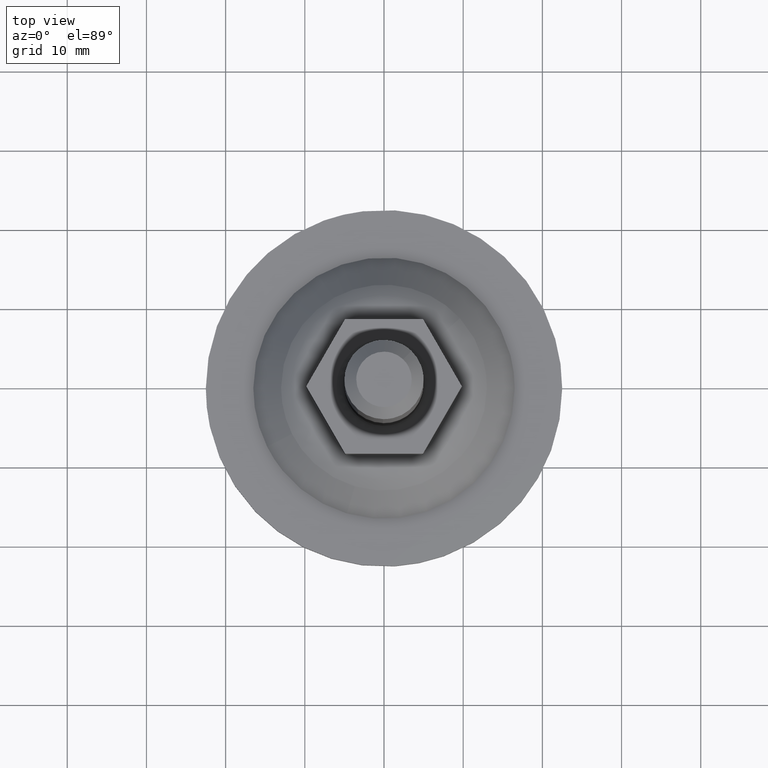
[diagram: clean part render]
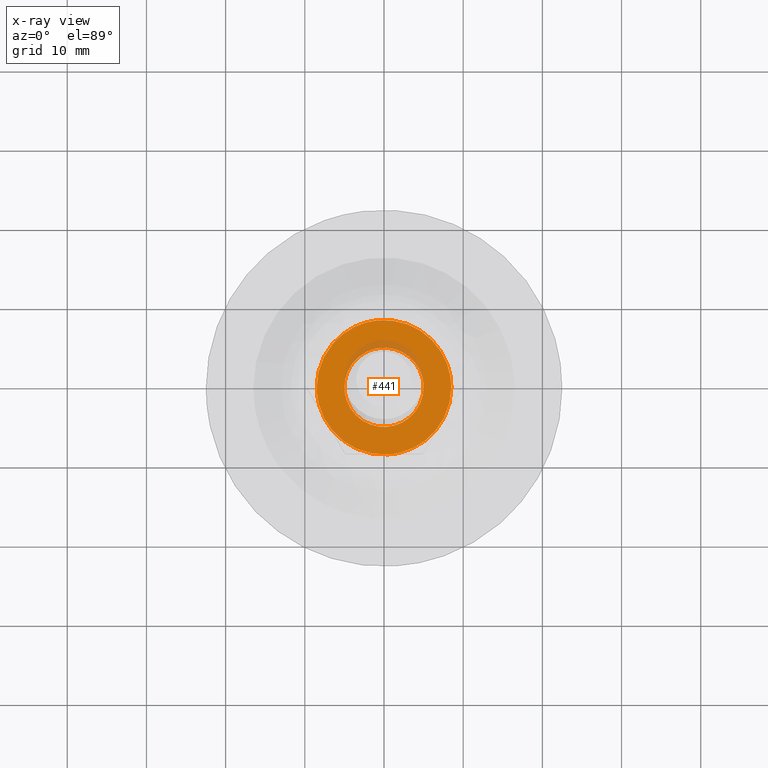
[diagram: x-ray — body ghosted, one internal face saturated and labeled with its STEP entity id]
A machine part, top view, then the same camera in x-ray: the body is ghosted and one INTERNAL B-rep face — a face not visible from any outside direction — is saturated and labeled: STEP entity #441.
In plain terms, the highlighted face is a freeform B-spline surface patch.
Its self-contained STEP definition (entity closure, byte-faithful):
#66=CARTESIAN_POINT('',(-0.590163485273047,4.965048545642874,9.000000000000849));
#67=VERTEX_POINT('',#66);
#68=CARTESIAN_POINT('',(5.0,0.0,9.0));
#69=VERTEX_POINT('',#68);
#70=CARTESIAN_POINT('',(-0.590163485273047,4.965048545642876,9.000000000000849));
#71=CARTESIAN_POINT('',(-0.296116713616737,5.0,9.0));
#72=CARTESIAN_POINT('',(0.0,5.0,9.0));
#73=CARTESIAN_POINT('',(5.000000000000001,5.000000000000001,9.000000000000002));
#74=CARTESIAN_POINT('',(5.0,0.0,9.0));
#82=(BOUNDED_CURVE()B_SPLINE_CURVE(2,(#70,#71,#72,#73,#74),.UNSPECIFIED.,.F.,.U.)B_SPLINE_CURVE_WITH_KNOTS((3,2,3),(0.229562735204758,0.250000000000000,0.500000000000000),.UNSPECIFIED.)CURVE()GEOMETRIC_REPRESENTATION_ITEM()RATIONAL_B_SPLINE_CURVE((0.956027267109899,0.976056254921514,1.0,0.707106781186548,1.0))REPRESENTATION_ITEM(''));
#83=EDGE_CURVE('',#67,#69,#82,.T.);
#85=CARTESIAN_POINT('',(0.305242697723591,-4.990673992106318,9.0));
#86=VERTEX_POINT('',#85);
#87=CARTESIAN_POINT('',(5.0,0.0,9.0));
#88=CARTESIAN_POINT('',(5.000000000000001,-4.703530334435358,9.0));
#89=CARTESIAN_POINT('',(0.305242697723591,-4.990673992106318,9.0));
#97=(BOUNDED_CURVE()B_SPLINE_CURVE(2,(#87,#88,#89),.UNSPECIFIED.,.F.,.U.)B_SPLINE_CURVE_WITH_KNOTS((3,3),(0.500000000000000,0.739332962238559),.UNSPECIFIED.)CURVE()GEOMETRIC_REPRESENTATION_ITEM()RATIONAL_B_SPLINE_CURVE((1.0,0.719603993287160,0.976072041665894))REPRESENTATION_ITEM(''));
#98=EDGE_CURVE('',#69,#86,#97,.T.);
#169=CARTESIAN_POINT('',(-5.0,0.0,9.0));
#170=VERTEX_POINT('',#169);
#171=CARTESIAN_POINT('',(-5.0,0.0,9.0));
#172=CARTESIAN_POINT('',(-4.999999999999999,4.440879554532102,9.0));
#173=CARTESIAN_POINT('',(-0.590163485273047,4.965048545642876,9.000000000000849));
#181=(BOUNDED_CURVE()B_SPLINE_CURVE(2,(#171,#172,#173),.UNSPECIFIED.,.F.,.U.)B_SPLINE_CURVE_WITH_KNOTS((3,3),(0.0,0.229562735204758),.UNSPECIFIED.)CURVE()GEOMETRIC_REPRESENTATION_ITEM()RATIONAL_B_SPLINE_CURVE((1.0,0.731050526265033,0.956027267109899))REPRESENTATION_ITEM(''));
#182=EDGE_CURVE('',#170,#67,#181,.T.);
#216=CARTESIAN_POINT('',(0.305242697723591,-4.990673992106318,9.0));
#217=CARTESIAN_POINT('',(0.152763816542388,-5.000000000000001,9.000000000000002));
#218=CARTESIAN_POINT('',(0.0,-5.0,9.0));
#219=CARTESIAN_POINT('',(-5.000000000000001,-5.000000000000001,9.000000000000002));
#220=CARTESIAN_POINT('',(-5.0,0.0,9.0));
#228=(BOUNDED_CURVE()B_SPLINE_CURVE(2,(#216,#217,#218,#219,#220),.UNSPECIFIED.,.F.,.U.)B_SPLINE_CURVE_WITH_KNOTS((3,2,3),(0.739332962238559,0.750000000000000,1.0),.UNSPECIFIED.)CURVE()GEOMETRIC_REPRESENTATION_ITEM()RATIONAL_B_SPLINE_CURVE((0.976072041665895,0.987502787899388,1.0,0.707106781186548,1.0))REPRESENTATION_ITEM(''));
#229=EDGE_CURVE('',#86,#170,#228,.T.);
#260=CARTESIAN_POINT('',(-1.003283173780628,8.440581903704663,8.999999999999336));
#261=VERTEX_POINT('',#260);
#262=CARTESIAN_POINT('',(8.500000000000000,0.0,9.0));
#263=VERTEX_POINT('',#262);
#264=CARTESIAN_POINT('',(-1.003283173780628,8.440581903704663,8.999999999999336));
#265=CARTESIAN_POINT('',(-0.503401065300611,8.500000000000000,9.0));
#266=CARTESIAN_POINT('',(0.0,8.500000000000000,9.0));
#267=CARTESIAN_POINT('',(8.500000000000002,8.500000000000002,9.000000000000002));
#268=CARTESIAN_POINT('',(8.500000000000000,0.0,9.0));
#276=(BOUNDED_CURVE()B_SPLINE_CURVE(2,(#264,#265,#266,#267,#268),.UNSPECIFIED.,.F.,.U.)B_SPLINE_CURVE_WITH_KNOTS((3,2,3),(0.229562630109248,0.250000000000000,0.500000000000000),.UNSPECIFIED.)CURVE()GEOMETRIC_REPRESENTATION_ITEM()RATIONAL_B_SPLINE_CURVE((0.956027061117988,0.976056131794466,1.0,0.707106781186548,1.0))REPRESENTATION_ITEM(''));
#277=EDGE_CURVE('',#261,#263,#276,.T.);
#318=CARTESIAN_POINT('',(0.518899510675575,-8.484146586289574,9.000000000001279));
#319=VERTEX_POINT('',#318);
#325=CARTESIAN_POINT('',(8.500000000000000,0.0,9.0));
#326=CARTESIAN_POINT('',(8.500000000000000,-7.996013914799701,9.000000000000002));
#327=CARTESIAN_POINT('',(0.518899510675575,-8.484146586289574,9.000000000001279));
#335=(BOUNDED_CURVE()B_SPLINE_CURVE(2,(#325,#326,#327),.UNSPECIFIED.,.F.,.U.)B_SPLINE_CURVE_WITH_KNOTS((3,3),(0.500000000000000,0.739333228163105),.UNSPECIFIED.)CURVE()GEOMETRIC_REPRESENTATION_ITEM()RATIONAL_B_SPLINE_CURVE((1.0,0.719603681737175,0.976072611593480))REPRESENTATION_ITEM(''));
#336=EDGE_CURVE('',#263,#319,#335,.T.);
#359=CARTESIAN_POINT('',(-8.500000000000000,0.0,9.0));
#360=VERTEX_POINT('',#359);
#361=CARTESIAN_POINT('',(-8.500000000000000,0.0,9.0));
#362=CARTESIAN_POINT('',(-8.500000000000002,7.549490514968563,9.000000000000002));
#363=CARTESIAN_POINT('',(-1.003283173780628,8.440581903704663,8.999999999999336));
#371=(BOUNDED_CURVE()B_SPLINE_CURVE(2,(#361,#362,#363),.UNSPECIFIED.,.F.,.U.)B_SPLINE_CURVE_WITH_KNOTS((3,3),(0.0,0.229562630109248),.UNSPECIFIED.)CURVE()GEOMETRIC_REPRESENTATION_ITEM()RATIONAL_B_SPLINE_CURVE((1.0,0.731050649392081,0.956027061117988))REPRESENTATION_ITEM(''));
#372=EDGE_CURVE('',#360,#261,#371,.T.);
#374=CARTESIAN_POINT('',(0.518899510675575,-8.484146586289574,9.000000000001279));
#375=CARTESIAN_POINT('',(0.259691932022389,-8.500000000000000,9.0));
#376=CARTESIAN_POINT('',(0.0,-8.500000000000000,9.0));
#377=CARTESIAN_POINT('',(-8.500000000000002,-8.500000000000002,9.000000000000002));
#378=CARTESIAN_POINT('',(-8.500000000000000,0.0,9.0));
#386=(BOUNDED_CURVE()B_SPLINE_CURVE(2,(#374,#375,#376,#377,#378),.UNSPECIFIED.,.F.,.U.)B_SPLINE_CURVE_WITH_KNOTS((3,2,3),(0.739333228163105,0.750000000000000,1.0),.UNSPECIFIED.)CURVE()GEOMETRIC_REPRESENTATION_ITEM()RATIONAL_B_SPLINE_CURVE((0.976072611593480,0.987503099449372,1.0,0.707106781186548,1.0))REPRESENTATION_ITEM(''));
#387=EDGE_CURVE('',#319,#360,#386,.T.);
#424=CARTESIAN_POINT('',(-9.349149967050700,-9.348943882525067,9.0));
#425=CARTESIAN_POINT('',(9.349150423026234,-9.348943882525067,9.0));
#426=CARTESIAN_POINT('',(-9.349149967050700,9.348995407760244,9.0));
#427=CARTESIAN_POINT('',(9.349150423026234,9.348995407760244,9.0));
#428=B_SPLINE_SURFACE_WITH_KNOTS('',1,1,((#424,#426),(#425,#427)),.UNSPECIFIED.,.F.,.F.,.U.,(2,2),(2,2),(0.0,18.698300390076930),(0.0,18.697939290285309),.UNSPECIFIED.);
#429=ORIENTED_EDGE('',*,*,#372,.T.);
#430=ORIENTED_EDGE('',*,*,#277,.T.);
#431=ORIENTED_EDGE('',*,*,#336,.T.);
#432=ORIENTED_EDGE('',*,*,#387,.T.);
#433=EDGE_LOOP('',(#429,#430,#431,#432));
#434=FACE_OUTER_BOUND('',#433,.T.);
#435=ORIENTED_EDGE('',*,*,#98,.F.);
#436=ORIENTED_EDGE('',*,*,#83,.F.);
#437=ORIENTED_EDGE('',*,*,#182,.F.);
#438=ORIENTED_EDGE('',*,*,#229,.F.);
#439=EDGE_LOOP('',(#435,#436,#437,#438));
#440=FACE_BOUND('',#439,.T.);
#441=ADVANCED_FACE('',(#434,#440),#428,.F.);